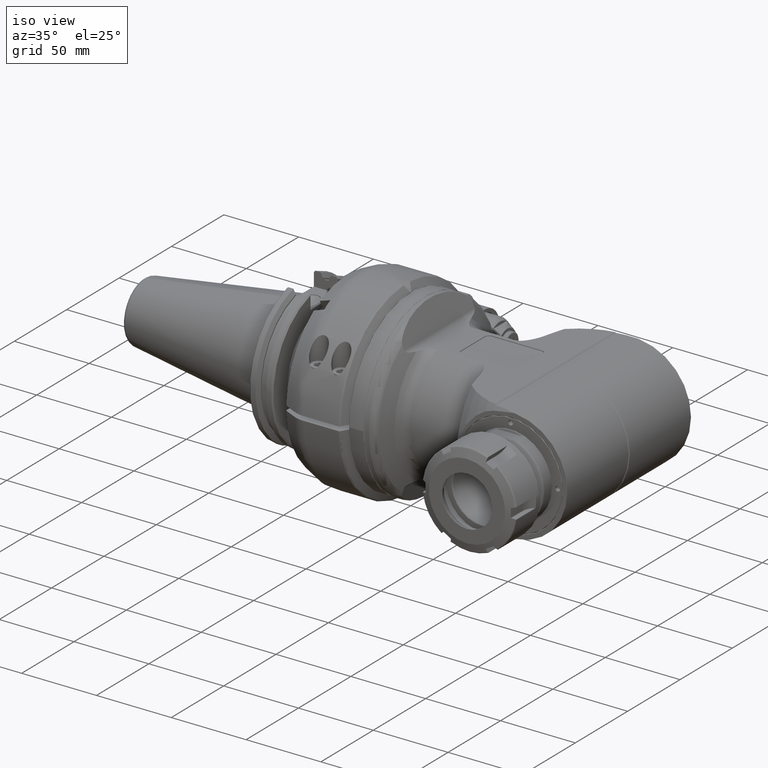
[diagram: clean part render]
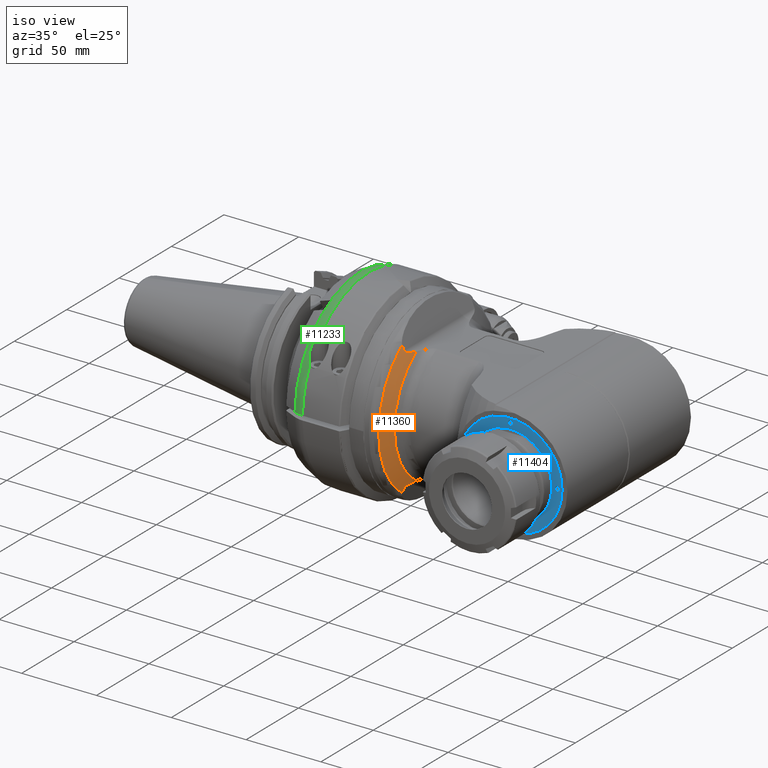
[diagram: same view with three faces highlighted in distinct colors, each labeled with its STEP entity id]
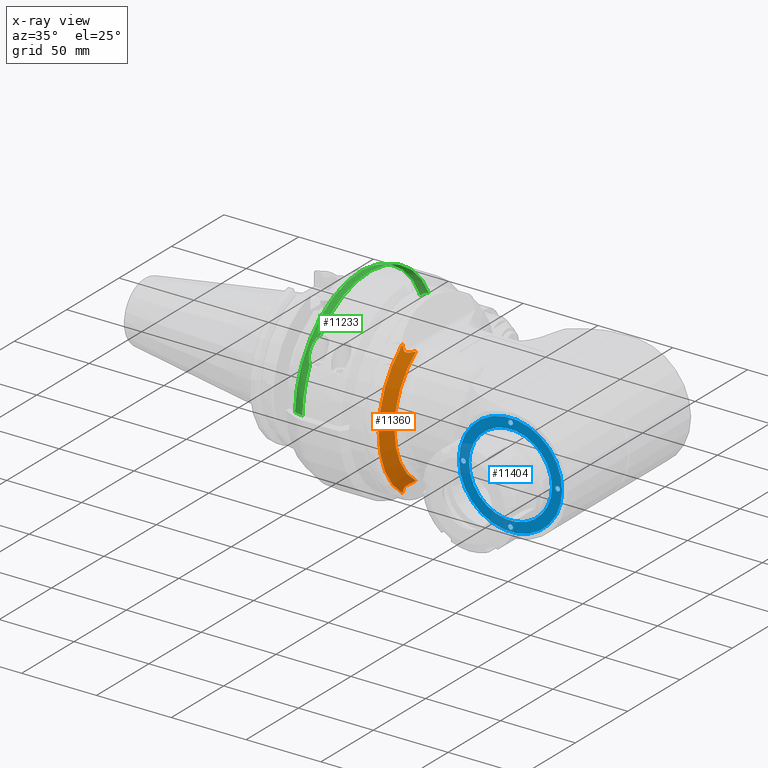
[diagram: x-ray of the same camera — body ghosted, the three highlighted faces saturated]
A machine part, iso view with three faces highlighted in distinct colors.
The next image is the same camera in x-ray (body ghosted, the three faces saturated) — at least one of them is partly hidden behind the body in this view.
Their STEP definitions:

[orange] entity #11360 — the highlighted conical surface has half-angle 65 deg.
#275=B_SPLINE_CURVE_WITH_KNOTS('',3,(#22187,#22188,#22189,#22190,#22191,
#22192,#22193,#22194,#22195,#22196,#22197,#22198,#22199,#22200,#22201,#22202,
#22203,#22204,#22205,#22206,#22207,#22208,#22209,#22210,#22211,#22212,#22213,
#22214,#22215,#22216,#22217,#22218,#22219,#22220,#22221,#22222,#22223,#22224,
#22225,#22226,#22227,#22228,#22229,#22230,#22231,#22232,#22233,#22234,#22235,
#22236,#22237,#22238,#22239,#22240,#22241,#22242,#22243,#22244,#22245,#22246,
#22247,#22248,#22249,#22250,#22251,#22252,#22253,#22254,#22255,#22256,#22257,
#22258,#22259,#22260,#22261,#22262,#22263,#22264,#22265,#22266,#22267,#22268,
#22269,#22270,#22271,#22272,#22273,#22274,#22275,#22276,#22277),
 .UNSPECIFIED.,.F.,.F.,(4,3,3,3,3,3,3,3,3,3,3,3,3,3,3,3,3,3,3,3,3,3,3,3,
3,3,3,3,3,3,4),(0.,0.04166666666667,0.080142904090702,0.08333333333333,
0.122683144462873,0.125,0.162968852365978,0.1666666666667,0.205009826000716,
0.2083333333333,0.24569180482321,0.25,0.284695004652717,0.2916666666667,
0.3333333333333,0.375,0.4166666666667,0.4583333333333,0.5,0.5416666666667,
0.5833333333333,0.625,0.6666666666667,0.7083333333333,0.75,0.7916666666667,
0.8333333333333,0.875,0.9166666666667,0.9583333333333,1.),.UNSPECIFIED.);
#284=B_SPLINE_CURVE_WITH_KNOTS('',3,(#22528,#22529,#22530,#22531,#22532,
#22533,#22534,#22535,#22536,#22537,#22538,#22539,#22540,#22541,#22542,#22543,
#22544,#22545,#22546,#22547,#22548,#22549,#22550,#22551,#22552,#22553,#22554,
#22555,#22556,#22557,#22558,#22559,#22560,#22561,#22562,#22563,#22564,#22565,
#22566,#22567,#22568,#22569,#22570,#22571,#22572,#22573,#22574,#22575,#22576,
#22577,#22578,#22579,#22580,#22581,#22582,#22583,#22584,#22585,#22586,#22587,
#22588,#22589,#22590,#22591,#22592,#22593,#22594,#22595,#22596,#22597,#22598,
#22599,#22600,#22601,#22602,#22603,#22604,#22605,#22606,#22607,#22608,#22609,
#22610,#22611,#22612,#22613,#22614,#22615,#22616,#22617,#22618,#22619,#22620,
#22621),.UNSPECIFIED.,.F.,.F.,(4,3,3,3,3,3,3,3,3,3,3,3,3,3,3,3,3,3,3,3,
3,3,3,3,3,3,3,3,3,3,3,4),(1.19044672554144E-11,0.04166666666667,0.0801449614505642,
0.08333333333333,0.122691160615956,0.125,0.162958626132216,0.1666666666667,
0.205055529704918,0.2083333333333,0.245632715743328,0.25,0.28482009031553,
0.2916666666667,0.331228057176492,0.3333333333333,0.375,0.4166666666667,
0.4583333333333,0.5,0.5416666666667,0.5833333333333,0.625,0.6666666666667,
0.7083333333333,0.75,0.7916666666667,0.8333333333333,0.875,0.9166666666667,
0.9583333333333,1.),.UNSPECIFIED.);
#420=CONICAL_SURFACE('',#12544,51.61607260739,1.13446401379631);
#2706=FACE_OUTER_BOUND('',#3453,.T.);
#3453=EDGE_LOOP('',(#9414,#9415,#9416,#9417,#9418,#9419));
#4187=CIRCLE('',#12523,56.1130913087);
#4189=CIRCLE('',#12526,97.519702599638);
#4199=CIRCLE('',#12542,47.11905390607);
#4201=CIRCLE('',#12545,97.5197026022416);
#5114=VERTEX_POINT('',#22127);
#5115=VERTEX_POINT('',#22144);
#5117=VERTEX_POINT('',#22164);
#5119=VERTEX_POINT('',#22186);
#5130=VERTEX_POINT('',#22522);
#5131=VERTEX_POINT('',#22527);
#6595=EDGE_CURVE('',#5114,#5115,#4187,.T.);
#6600=EDGE_CURVE('',#5115,#5117,#4189,.T.);
#6601=EDGE_CURVE('',#5119,#5117,#275,.T.);
#6616=EDGE_CURVE('',#5130,#5131,#284,.T.);
#6649=EDGE_CURVE('',#5119,#5130,#4199,.T.);
#6652=EDGE_CURVE('',#5131,#5114,#4201,.T.);
#9414=ORIENTED_EDGE('',*,*,#6649,.F.);
#9415=ORIENTED_EDGE('',*,*,#6601,.T.);
#9416=ORIENTED_EDGE('',*,*,#6600,.F.);
#9417=ORIENTED_EDGE('',*,*,#6595,.F.);
#9418=ORIENTED_EDGE('',*,*,#6652,.F.);
#9419=ORIENTED_EDGE('',*,*,#6616,.F.);
#11360=ADVANCED_FACE('',(#2706),#420,.T.);
#12523=AXIS2_PLACEMENT_3D('',#22145,#15277,#15278);
#12526=AXIS2_PLACEMENT_3D('',#22184,#15284,#15285);
#12542=AXIS2_PLACEMENT_3D('',#22778,#15327,#15328);
#12544=AXIS2_PLACEMENT_3D('',#22793,#15331,#15332);
#12545=AXIS2_PLACEMENT_3D('',#22794,#15333,#15334);
#15277=DIRECTION('center_axis',(-1.,0.,0.));
#15278=DIRECTION('ref_axis',(0.,-0.599356047027288,-0.800482560017283));
#15284=DIRECTION('center_axis',(0.939692620785776,7.67999771890325E-11,
0.342020143326034));
#15285=DIRECTION('ref_axis',(0.00157477489048002,-0.999989400000132,-0.00432665822777524));
#15327=DIRECTION('center_axis',(1.,0.,0.));
#15328=DIRECTION('ref_axis',(0.,-0.558893115748477,0.829239703082866));
#15331=DIRECTION('center_axis',(-1.,0.,0.));
#15332=DIRECTION('ref_axis',(0.,-1.,-2.08643217218556E-11));
#15333=DIRECTION('center_axis',(0.939692620784958,-6.62987687350415E-11,
-0.34202014332828));
#15334=DIRECTION('ref_axis',(-0.0106881019219166,-0.999511602007248,-0.0293653184932679));
#22127=CARTESIAN_POINT('',(17.84618763115,-33.63172059327,-44.91755098127));
#22144=CARTESIAN_POINT('',(17.84618763112,-33.63172059326,44.91755098134));
#22145=CARTESIAN_POINT('Origin',(17.84618763115,0.,0.));
#22164=CARTESIAN_POINT('',(19.04205971778,-33.67831531143,41.6319194267));
#22184=CARTESIAN_POINT('Origin',(18.888488138799,63.8403535793733,42.0538538503229));
#22186=CARTESIAN_POINT('',(22.04017614956,-26.33451484929,39.07299027066));
#22187=CARTESIAN_POINT('Ctrl Pts',(22.0401761495643,-26.33451484929,39.0729902706823));
#22188=CARTESIAN_POINT('Ctrl Pts',(21.9573188965052,-26.62863056152,39.0890395574342));
#22189=CARTESIAN_POINT('Ctrl Pts',(21.8750180075767,-26.9136041141,39.1077026952804));
#22190=CARTESIAN_POINT('Ctrl Pts',(21.7934350784642,-27.1896440024501,39.1289336007694));
#22191=CARTESIAN_POINT('Ctrl Pts',(21.7180989788575,-27.4445474332339,39.1485388494171));
#22192=CARTESIAN_POINT('Ctrl Pts',(21.6433759027927,-27.6918329283479,39.1703371980135));
#22193=CARTESIAN_POINT('Ctrl Pts',(21.5695690111105,-27.9310617496978,39.1942154708301));
#22194=CARTESIAN_POINT('Ctrl Pts',(21.5634489827165,-27.9508984769459,39.1961954445738));
#22195=CARTESIAN_POINT('Ctrl Pts',(21.5573352435098,-27.9706798094167,39.1981896912613));
#22196=CARTESIAN_POINT('Ctrl Pts',(21.5512279605648,-27.9904054969749,39.2001981313627));
#22197=CARTESIAN_POINT('Ctrl Pts',(21.4759025381457,-28.2336962960452,39.2249696378425));
#22198=CARTESIAN_POINT('Ctrl Pts',(21.4015606234956,-28.4685223763363,39.2519042885973));
#22199=CARTESIAN_POINT('Ctrl Pts',(21.328485784823,-28.6945866574527,39.280833168519));
#22200=CARTESIAN_POINT('Ctrl Pts',(21.3241832522379,-28.7078969699146,39.2825364558718));
#22201=CARTESIAN_POINT('Ctrl Pts',(21.3198851049657,-28.7211769081029,39.284246643419));
#22202=CARTESIAN_POINT('Ctrl Pts',(21.3155913981017,-28.7344264113799,39.2859636918034));
#22203=CARTESIAN_POINT('Ctrl Pts',(21.2452257152148,-28.9515605510727,39.3141028466037));
#22204=CARTESIAN_POINT('Ctrl Pts',(21.1760545265543,-29.1605207954474,39.3440884205707));
#22205=CARTESIAN_POINT('Ctrl Pts',(21.1083383162294,-29.3610460722238,39.375710935886));
#22206=CARTESIAN_POINT('Ctrl Pts',(21.1017433849811,-29.3805753755847,39.3787906757799));
#22207=CARTESIAN_POINT('Ctrl Pts',(21.0951622306317,-29.4000246736613,39.381885908667));
#22208=CARTESIAN_POINT('Ctrl Pts',(21.0885950782663,-29.4193937252888,39.3849964198149));
#22209=CARTESIAN_POINT('Ctrl Pts',(21.0204993468319,-29.6202341602884,39.4172497497158));
#22210=CARTESIAN_POINT('Ctrl Pts',(20.953911479761,-29.8124465698564,39.451149238896));
#22211=CARTESIAN_POINT('Ctrl Pts',(20.8890621147946,-29.9959017987427,39.4864344627043));
#22212=CARTESIAN_POINT('Ctrl Pts',(20.8834411032837,-30.0118033261337,39.4894929143837));
#22213=CARTESIAN_POINT('Ctrl Pts',(20.8778331309816,-30.0276390602042,39.4925617537493));
#22214=CARTESIAN_POINT('Ctrl Pts',(20.8722383352359,-30.0434089168462,39.4956407981462));
#22215=CARTESIAN_POINT('Ctrl Pts',(20.8093490449643,-30.2206727772216,39.5302513408076));
#22216=CARTESIAN_POINT('Ctrl Pts',(20.7481274558882,-30.3896128391818,39.5661544767546));
#22217=CARTESIAN_POINT('Ctrl Pts',(20.6887802343697,-30.5501494407341,39.6030535861167));
#22218=CARTESIAN_POINT('Ctrl Pts',(20.6819362869782,-30.5686625914313,39.6073088074532));
#22219=CARTESIAN_POINT('Ctrl Pts',(20.6751172234855,-30.5870639861665,39.6115772366963));
#22220=CARTESIAN_POINT('Ctrl Pts',(20.6683233269905,-30.6053535027683,39.6158583905748));
#22221=CARTESIAN_POINT('Ctrl Pts',(20.6136103298227,-30.7526436875342,39.6503356246919));
#22222=CARTESIAN_POINT('Ctrl Pts',(20.5605323673521,-30.8926780210362,39.6856412665796));
#22223=CARTESIAN_POINT('Ctrl Pts',(20.5092923446924,-31.025343358486,39.7214554672117));
#22224=CARTESIAN_POINT('Ctrl Pts',(20.4989961039757,-31.0520013140888,39.7286520220071));
#22225=CARTESIAN_POINT('Ctrl Pts',(20.4887739445352,-31.0783617285175,39.7358690035999));
#22226=CARTESIAN_POINT('Ctrl Pts',(20.4786273158093,-31.104423683772,39.7431036614004));
#22227=CARTESIAN_POINT('Ctrl Pts',(20.417985219841,-31.2601849355501,39.7863421423271));
#22228=CARTESIAN_POINT('Ctrl Pts',(20.3600453029513,-31.4052853872099,39.8302141142532));
#22229=CARTESIAN_POINT('Ctrl Pts',(20.3049355086154,-31.5401605661397,39.8742185481186));
#22230=CARTESIAN_POINT('Ctrl Pts',(20.2498257142794,-31.6750357450698,39.9182229819841));
#22231=CARTESIAN_POINT('Ctrl Pts',(20.1975417263057,-31.7996856512699,39.9623543943869));
#22232=CARTESIAN_POINT('Ctrl Pts',(20.1478881424103,-31.9152749845167,40.0063569962018));
#22233=CARTESIAN_POINT('Ctrl Pts',(20.0982345585148,-32.0308643177634,40.0503595980166));
#22234=CARTESIAN_POINT('Ctrl Pts',(20.0512105944944,-32.1373930780568,40.0942323763086));
#22235=CARTESIAN_POINT('Ctrl Pts',(20.0065623099306,-32.2360270549836,40.1378212925491));
#22236=CARTESIAN_POINT('Ctrl Pts',(19.9619140253668,-32.3346610319101,40.1814102087895));
#22237=CARTESIAN_POINT('Ctrl Pts',(19.9196417748791,-32.4254002254699,40.2247156300839));
#22238=CARTESIAN_POINT('Ctrl Pts',(19.8795184615954,-32.5092426844965,40.2676131822737));
#22239=CARTESIAN_POINT('Ctrl Pts',(19.8393951483116,-32.5930851435232,40.3105107344637));
#22240=CARTESIAN_POINT('Ctrl Pts',(19.8014212251432,-32.6700308680166,40.3530008152785));
#22241=CARTESIAN_POINT('Ctrl Pts',(19.7654020024102,-32.7409207301067,40.3949710842888));
#22242=CARTESIAN_POINT('Ctrl Pts',(19.7293827796773,-32.8118105921967,40.4369413532991));
#22243=CARTESIAN_POINT('Ctrl Pts',(19.695319455813,-32.8766445918834,40.478392873512));
#22244=CARTESIAN_POINT('Ctrl Pts',(19.6630953147445,-32.9360653765485,40.5191493829581));
#22245=CARTESIAN_POINT('Ctrl Pts',(19.630871173676,-32.9954861612134,40.5599058924041));
#22246=CARTESIAN_POINT('Ctrl Pts',(19.600485018097,-33.0494937308566,40.5999664447357));
#22247=CARTESIAN_POINT('Ctrl Pts',(19.5717512099699,-33.0988109586565,40.6392694202419));
#22248=CARTESIAN_POINT('Ctrl Pts',(19.5430174018428,-33.1481281864566,40.6785723957483));
#22249=CARTESIAN_POINT('Ctrl Pts',(19.5159366969415,-33.1927550724133,40.7171183509999));
#22250=CARTESIAN_POINT('Ctrl Pts',(19.4903747955885,-33.2332790285833,40.7548084693479));
#22251=CARTESIAN_POINT('Ctrl Pts',(19.4648128942356,-33.2738029847534,40.792498587696));
#22252=CARTESIAN_POINT('Ctrl Pts',(19.4407680074941,-33.3102240111367,40.8293316619892));
#22253=CARTESIAN_POINT('Ctrl Pts',(19.4180081234818,-33.3432219162417,40.8654005545779));
#22254=CARTESIAN_POINT('Ctrl Pts',(19.3952482394695,-33.3762198213467,40.9014694471665));
#22255=CARTESIAN_POINT('Ctrl Pts',(19.3737743487799,-33.4057946051733,40.9367747518226));
#22256=CARTESIAN_POINT('Ctrl Pts',(19.3534231353492,-33.4324433933549,40.9713589464244));
#22257=CARTESIAN_POINT('Ctrl Pts',(19.3330719219184,-33.4590921815366,41.0059431410263));
#22258=CARTESIAN_POINT('Ctrl Pts',(19.3138432241081,-33.4828149740733,41.0398061688357));
#22259=CARTESIAN_POINT('Ctrl Pts',(19.2955749448926,-33.5040576269667,41.0730372110255));
#22260=CARTESIAN_POINT('Ctrl Pts',(19.2773066656771,-33.52530027986,41.1062682532153));
#22261=CARTESIAN_POINT('Ctrl Pts',(19.259997724596,-33.54406279311,41.1388666778292));
#22262=CARTESIAN_POINT('Ctrl Pts',(19.2434369685219,-33.5607512603417,41.1710786265977));
#22263=CARTESIAN_POINT('Ctrl Pts',(19.2268762124477,-33.5774397275733,41.203290575366));
#22264=CARTESIAN_POINT('Ctrl Pts',(19.2110666265427,-33.5920541487867,41.235117587257));
#22265=CARTESIAN_POINT('Ctrl Pts',(19.1959763782002,-33.6047708095883,41.2664980770641));
#22266=CARTESIAN_POINT('Ctrl Pts',(19.1808861298576,-33.61748747039,41.2978785668713));
#22267=CARTESIAN_POINT('Ctrl Pts',(19.1665135242162,-33.62830637078,41.3288117534704));
#22268=CARTESIAN_POINT('Ctrl Pts',(19.1527395306013,-33.6374605494983,41.359440808403));
#22269=CARTESIAN_POINT('Ctrl Pts',(19.1389655369864,-33.6466147282167,41.3900698633356));
#22270=CARTESIAN_POINT('Ctrl Pts',(19.12578971657,-33.6541041852633,41.4203945641152));
#22271=CARTESIAN_POINT('Ctrl Pts',(19.1130845994029,-33.660086065035,41.4506348466256));
#22272=CARTESIAN_POINT('Ctrl Pts',(19.1003794822358,-33.6660679448067,41.4808751291359));
#22273=CARTESIAN_POINT('Ctrl Pts',(19.0881459348141,-33.6705422473033,41.5110313480991));
#22274=CARTESIAN_POINT('Ctrl Pts',(19.0763167304081,-33.6735671293392,41.5412336006147));
#22275=CARTESIAN_POINT('Ctrl Pts',(19.0644875260021,-33.676592011375,41.5714358531304));
#22276=CARTESIAN_POINT('Ctrl Pts',(19.0530642370766,-33.67816747295,41.6016847584088));
#22277=CARTESIAN_POINT('Ctrl Pts',(19.04205971779,-33.67831531144,41.63191942666));
#22522=CARTESIAN_POINT('',(22.0401761500767,-26.3345148470315,-39.0729902708492));
#22527=CARTESIAN_POINT('',(19.04205971778,-33.67831531143,-41.6319194267));
#22528=CARTESIAN_POINT('Ctrl Pts',(22.0401761502,-26.3345148470821,-39.0729902705591));
#22529=CARTESIAN_POINT('Ctrl Pts',(21.9573233230387,-26.6286148489228,-39.0890387000095));
#22530=CARTESIAN_POINT('Ctrl Pts',(21.8750270391584,-26.9135728194939,-39.1077006563254));
#22531=CARTESIAN_POINT('Ctrl Pts',(21.7934489165901,-27.1895971796159,-39.128929999602));
#22532=CARTESIAN_POINT('Ctrl Pts',(21.7181132274141,-27.4444999004001,-39.1485348538955));
#22533=CARTESIAN_POINT('Ctrl Pts',(21.6433907986279,-27.6917839166775,-39.1703327166736));
#22534=CARTESIAN_POINT('Ctrl Pts',(21.5695847782806,-27.9310106433628,-39.1942103698142));
#22535=CARTESIAN_POINT('Ctrl Pts',(21.5634690956243,-27.9508333453109,-39.1961889096203));
#22536=CARTESIAN_POINT('Ctrl Pts',(21.5573596949106,-27.9706007255892,-39.1981817015255));
#22537=CARTESIAN_POINT('Ctrl Pts',(21.5512567428558,-27.9903125346732,-39.2001886661439));
#22538=CARTESIAN_POINT('Ctrl Pts',(21.4759208216653,-28.2336385975933,-39.22496299289));
#22539=CARTESIAN_POINT('Ctrl Pts',(21.4015689195443,-28.4684967936689,-39.2519009772728));
#22540=CARTESIAN_POINT('Ctrl Pts',(21.3284845933106,-28.6945903476576,-39.2808336402154));
#22541=CARTESIAN_POINT('Ctrl Pts',(21.3241972638919,-28.7078536230457,-39.2825309105248));
#22542=CARTESIAN_POINT('Ctrl Pts',(21.319914289437,-28.721086736485,-39.2842350321192));
#22543=CARTESIAN_POINT('Ctrl Pts',(21.3156357244357,-28.7342896280632,-39.2859459660607));
#22544=CARTESIAN_POINT('Ctrl Pts',(21.2452936944133,-28.9513526376193,-39.3140746883408));
#22545=CARTESIAN_POINT('Ctrl Pts',(21.1761454390107,-29.1602469136094,-39.3440485419767));
#22546=CARTESIAN_POINT('Ctrl Pts',(21.1084514602663,-29.3607110052988,-39.3756581013674));
#22547=CARTESIAN_POINT('Ctrl Pts',(21.1018386809668,-29.3802936154571,-39.3787459245961));
#22548=CARTESIAN_POINT('Ctrl Pts',(21.0952397556485,-29.3997957795062,-39.3818493232289));
#22549=CARTESIAN_POINT('Ctrl Pts',(21.0886549114691,-29.4192172537255,-39.384968080612));
#22550=CARTESIAN_POINT('Ctrl Pts',(21.0204828731705,-29.6202852590165,-39.4172561715637));
#22551=CARTESIAN_POINT('Ctrl Pts',(20.9538224675555,-29.8127047730168,-39.4511938925846));
#22552=CARTESIAN_POINT('Ctrl Pts',(20.8889041273493,-29.9963487605518,-39.486520429944));
#22553=CARTESIAN_POINT('Ctrl Pts',(20.8833611246596,-30.0120290615827,-39.489536759243));
#22554=CARTESIAN_POINT('Ctrl Pts',(20.8778308007855,-30.0276453849252,-39.4925631909442));
#22555=CARTESIAN_POINT('Ctrl Pts',(20.872313286887,-30.0431976515012,-39.4955995502385));
#22556=CARTESIAN_POINT('Ctrl Pts',(20.8095273838295,-30.2201728471282,-39.5301514451332));
#22557=CARTESIAN_POINT('Ctrl Pts',(20.7484030480792,-30.3888533093642,-39.5659920353099));
#22558=CARTESIAN_POINT('Ctrl Pts',(20.6891474246313,-30.5491560650838,-39.6028253132455));
#22559=CARTESIAN_POINT('Ctrl Pts',(20.6822093432294,-30.5679254831309,-39.6071380225842));
#22560=CARTESIAN_POINT('Ctrl Pts',(20.6752968366528,-30.5865800475337,-39.6114643025277));
#22561=CARTESIAN_POINT('Ctrl Pts',(20.6684102019896,-30.6051196251033,-39.6158036481076));
#22562=CARTESIAN_POINT('Ctrl Pts',(20.613503484943,-30.7529345433564,-39.6504009850619));
#22563=CARTESIAN_POINT('Ctrl Pts',(20.5602442281572,-30.8934400069067,-39.685832011333));
#22564=CARTESIAN_POINT('Ctrl Pts',(20.5088340942917,-31.0265298911218,-39.7217758088867));
#22565=CARTESIAN_POINT('Ctrl Pts',(20.498725464373,-31.052698980449,-39.7288433366292));
#22566=CARTESIAN_POINT('Ctrl Pts',(20.4886882005821,-31.078581366794,-39.7359305866997));
#22567=CARTESIAN_POINT('Ctrl Pts',(20.4787236516358,-31.104176243392,-39.7430349750464));
#22568=CARTESIAN_POINT('Ctrl Pts',(20.4211457627903,-31.2520704398796,-39.784086073771));
#22569=CARTESIAN_POINT('Ctrl Pts',(20.3659991570285,-31.3903651331896,-39.8257112033268));
#22570=CARTESIAN_POINT('Ctrl Pts',(20.3133976726182,-31.519424350122,-39.8674803405013));
#22571=CARTESIAN_POINT('Ctrl Pts',(20.3105984623398,-31.5262922910291,-39.8697031028322));
#22572=CARTESIAN_POINT('Ctrl Pts',(20.3078064480502,-31.5331340781632,-39.8719262689739));
#22573=CARTESIAN_POINT('Ctrl Pts',(20.3050216430592,-31.539949766383,-39.8741497728604));
#22574=CARTESIAN_POINT('Ctrl Pts',(20.2499060512556,-31.6748427628398,-39.9181563488955));
#22575=CARTESIAN_POINT('Ctrl Pts',(20.1976149960891,-31.7995126780299,-39.9622913846343));
#22576=CARTESIAN_POINT('Ctrl Pts',(20.1479529741086,-31.9151240596633,-40.0062995441318));
#22577=CARTESIAN_POINT('Ctrl Pts',(20.0982909521281,-32.0307354412967,-40.0503077036292));
#22578=CARTESIAN_POINT('Ctrl Pts',(20.0512572324551,-32.1372882893735,-40.0941880344826));
#22579=CARTESIAN_POINT('Ctrl Pts',(20.0066013306941,-32.2359408517636,-40.1377831981493));
#22580=CARTESIAN_POINT('Ctrl Pts',(19.9619454289334,-32.3345934141534,-40.1813783618159));
#22581=CARTESIAN_POINT('Ctrl Pts',(19.9196676028603,-32.4253456908566,-40.2246886255427));
#22582=CARTESIAN_POINT('Ctrl Pts',(19.8795378143196,-32.5092022444648,-40.2675924915945));
#22583=CARTESIAN_POINT('Ctrl Pts',(19.8394080257788,-32.5930587980732,-40.3104963576465));
#22584=CARTESIAN_POINT('Ctrl Pts',(19.8014268154572,-32.6700196285866,-40.3529943059121));
#22585=CARTESIAN_POINT('Ctrl Pts',(19.7654021426238,-32.7409204541483,-40.3949709209092));
#22586=CARTESIAN_POINT('Ctrl Pts',(19.7293774697905,-32.8118212797101,-40.4369475359064));
#22587=CARTESIAN_POINT('Ctrl Pts',(19.6953104386014,-32.8766621003201,-40.4784037988658));
#22588=CARTESIAN_POINT('Ctrl Pts',(19.6630811154464,-32.9360915586968,-40.5191673420786));
#22589=CARTESIAN_POINT('Ctrl Pts',(19.6308517922914,-32.9955210170734,-40.5599308852914));
#22590=CARTESIAN_POINT('Ctrl Pts',(19.6004591160642,-33.0495391132166,-40.6000008709835));
#22591=CARTESIAN_POINT('Ctrl Pts',(19.5717224864558,-33.0988602597565,-40.6393087096387));
#22592=CARTESIAN_POINT('Ctrl Pts',(19.5429858568473,-33.1481814062966,-40.6786165482941));
#22593=CARTESIAN_POINT('Ctrl Pts',(19.5159058706482,-33.1928056032333,-40.7171626805488));
#22594=CARTESIAN_POINT('Ctrl Pts',(19.490343709336,-33.233328306165,-40.7548543056096));
#22595=CARTESIAN_POINT('Ctrl Pts',(19.4647815480238,-33.2738510090967,-40.7925459306704));
#22596=CARTESIAN_POINT('Ctrl Pts',(19.4407355533518,-33.3102722180234,-40.8293819293297));
#22597=CARTESIAN_POINT('Ctrl Pts',(19.4179769960822,-33.3432670470351,-40.8654498847488));
#22598=CARTESIAN_POINT('Ctrl Pts',(19.3952184388127,-33.3762618760467,-40.9015178401679));
#22599=CARTESIAN_POINT('Ctrl Pts',(19.3737481760559,-33.4058303251433,-40.9368182623279));
#22600=CARTESIAN_POINT('Ctrl Pts',(19.3533983370469,-33.4324758645833,-40.9714010884474));
#22601=CARTESIAN_POINT('Ctrl Pts',(19.3330484980378,-33.4591214040233,-41.0059839145669));
#22602=CARTESIAN_POINT('Ctrl Pts',(19.313819066058,-33.4828440338066,-41.0398491721156));
#22603=CARTESIAN_POINT('Ctrl Pts',(19.2955518800263,-33.5040844437133,-41.0730791679281));
#22604=CARTESIAN_POINT('Ctrl Pts',(19.2772846939945,-33.52532485362,-41.1063091637407));
#22605=CARTESIAN_POINT('Ctrl Pts',(19.2599785744252,-33.54408304365,-41.1389032132956));
#22606=CARTESIAN_POINT('Ctrl Pts',(19.2434204942392,-33.5607678654567,-41.1711106707039));
#22607=CARTESIAN_POINT('Ctrl Pts',(19.2268624140532,-33.5774526872633,-41.2033181281121));
#22608=CARTESIAN_POINT('Ctrl Pts',(19.2110553821226,-33.5920641408467,-41.2351405429543));
#22609=CARTESIAN_POINT('Ctrl Pts',(19.1959671549299,-33.6047785802533,-41.2665172571799));
#22610=CARTESIAN_POINT('Ctrl Pts',(19.1808789277372,-33.61749301966,-41.2978939714056));
#22611=CARTESIAN_POINT('Ctrl Pts',(19.1665078208096,-33.62831044489,-41.3288242094545));
#22612=CARTESIAN_POINT('Ctrl Pts',(19.1527349893359,-33.6374635676217,-41.3594509067945));
#22613=CARTESIAN_POINT('Ctrl Pts',(19.1389621578623,-33.6466166903533,-41.3900776041344));
#22614=CARTESIAN_POINT('Ctrl Pts',(19.125787163166,-33.6541055105867,-41.4204005383252));
#22615=CARTESIAN_POINT('Ctrl Pts',(19.1130827089066,-33.6600869551867,-41.4506393463274));
#22616=CARTESIAN_POINT('Ctrl Pts',(19.1003782546472,-33.6660683997867,-41.4808781543295));
#22617=CARTESIAN_POINT('Ctrl Pts',(19.0881452036225,-33.6705424687533,-41.5110331893184));
#22618=CARTESIAN_POINT('Ctrl Pts',(19.0763163096174,-33.6735672369892,-41.5412346749755));
#22619=CARTESIAN_POINT('Ctrl Pts',(19.0644874156122,-33.676592005225,-41.5714361606327));
#22620=CARTESIAN_POINT('Ctrl Pts',(19.0530642522931,-33.67816747273,-41.6016847166011));
#22621=CARTESIAN_POINT('Ctrl Pts',(19.0420597177759,-33.67831531143,-41.6319194266985));
#22778=CARTESIAN_POINT('Origin',(22.04017614972,0.,0.));
#22793=CARTESIAN_POINT('Origin',(19.94318189043,0.,0.));
#22794=CARTESIAN_POINT('Origin',(18.8884881519078,63.8403535819769,-42.0538538551064));

[blue] entity #11404 — the highlighted planar face has unit normal (0, 1, 0).
#2259=FACE_BOUND('',#3501,.T.);
#2260=FACE_BOUND('',#3502,.T.);
#2261=FACE_BOUND('',#3503,.T.);
#2262=FACE_BOUND('',#3504,.T.);
#2263=FACE_BOUND('',#3505,.T.);
#2750=FACE_OUTER_BOUND('',#3500,.T.);
#3500=EDGE_LOOP('',(#9659));
#3501=EDGE_LOOP('',(#9660));
#3502=EDGE_LOOP('',(#9661));
#3503=EDGE_LOOP('',(#9662));
#3504=EDGE_LOOP('',(#9663));
#3505=EDGE_LOOP('',(#9664));
#4246=CIRCLE('',#12635,34.5);
#4247=CIRCLE('',#12637,1.6);
#4248=CIRCLE('',#12638,1.6);
#4249=CIRCLE('',#12639,1.6);
#4250=CIRCLE('',#12640,1.6);
#4251=CIRCLE('',#12641,27.65);
#5241=VERTEX_POINT('',#23444);
#5242=VERTEX_POINT('',#23448);
#5243=VERTEX_POINT('',#23450);
#5244=VERTEX_POINT('',#23452);
#5245=VERTEX_POINT('',#23454);
#5246=VERTEX_POINT('',#23456);
#6776=EDGE_CURVE('',#5241,#5241,#4246,.T.);
#6777=EDGE_CURVE('',#5242,#5242,#4247,.T.);
#6778=EDGE_CURVE('',#5243,#5243,#4248,.T.);
#6779=EDGE_CURVE('',#5244,#5244,#4249,.T.);
#6780=EDGE_CURVE('',#5245,#5245,#4250,.T.);
#6781=EDGE_CURVE('',#5246,#5246,#4251,.T.);
#9659=ORIENTED_EDGE('',*,*,#6776,.T.);
#9660=ORIENTED_EDGE('',*,*,#6777,.T.);
#9661=ORIENTED_EDGE('',*,*,#6778,.T.);
#9662=ORIENTED_EDGE('',*,*,#6779,.T.);
#9663=ORIENTED_EDGE('',*,*,#6780,.T.);
#9664=ORIENTED_EDGE('',*,*,#6781,.T.);
#10835=PLANE('',#12636);
#11404=ADVANCED_FACE('',(#2750,#2259,#2260,#2261,#2262,#2263),#10835,.F.);
#12635=AXIS2_PLACEMENT_3D('',#23446,#15544,#15545);
#12636=AXIS2_PLACEMENT_3D('',#23447,#15546,#15547);
#12637=AXIS2_PLACEMENT_3D('',#23449,#15548,#15549);
#12638=AXIS2_PLACEMENT_3D('',#23451,#15550,#15551);
#12639=AXIS2_PLACEMENT_3D('',#23453,#15552,#15553);
#12640=AXIS2_PLACEMENT_3D('',#23455,#15554,#15555);
#12641=AXIS2_PLACEMENT_3D('',#23457,#15556,#15557);
#15544=DIRECTION('center_axis',(0.,-1.,0.));
#15545=DIRECTION('ref_axis',(1.,0.,0.));
#15546=DIRECTION('center_axis',(0.,1.,0.));
#15547=DIRECTION('ref_axis',(1.,0.,0.));
#15548=DIRECTION('center_axis',(0.,1.,0.));
#15549=DIRECTION('ref_axis',(0.,0.,1.));
#15550=DIRECTION('center_axis',(0.,1.,0.));
#15551=DIRECTION('ref_axis',(4.440892098501E-14,0.,1.));
#15552=DIRECTION('center_axis',(0.,1.,0.));
#15553=DIRECTION('ref_axis',(0.,0.,1.));
#15554=DIRECTION('center_axis',(0.,1.,0.));
#15555=DIRECTION('ref_axis',(0.,0.,1.));
#15556=DIRECTION('center_axis',(0.,1.,0.));
#15557=DIRECTION('ref_axis',(-1.,0.,0.));
#23444=CARTESIAN_POINT('',(73.5,-59.,0.));
#23446=CARTESIAN_POINT('Origin',(108.,-59.,0.));
#23447=CARTESIAN_POINT('Origin',(125.5,-59.,0.));
#23448=CARTESIAN_POINT('',(108.,-59.,-33.1));
#23449=CARTESIAN_POINT('Origin',(108.,-59.,-31.5));
#23450=CARTESIAN_POINT('',(76.5,-59.,-1.6));
#23451=CARTESIAN_POINT('Origin',(76.5,-59.,0.));
#23452=CARTESIAN_POINT('',(139.5,-59.,-1.6));
#23453=CARTESIAN_POINT('Origin',(139.5,-59.,0.));
#23454=CARTESIAN_POINT('',(108.,-59.,29.9));
#23455=CARTESIAN_POINT('Origin',(108.,-59.,31.5));
#23456=CARTESIAN_POINT('',(80.35,-59.,3.38614839964243E-15));
#23457=CARTESIAN_POINT('Origin',(108.,-59.,0.));

[green] entity #11233 — the highlighted toroidal blend (fillet) surface has major radius 50 mm and minor (blend) radius 14 mm.
#188=B_SPLINE_CURVE_WITH_KNOTS('',3,(#17950,#17951,#17952,#17953,#17954,
#17955,#17956,#17957),.UNSPECIFIED.,.F.,.F.,(4,2,2,4),(7.71711455611756,
7.77709215270507,8.03623389546179,8.29537563821852),.UNSPECIFIED.);
#236=B_SPLINE_CURVE_WITH_KNOTS('',3,(#20502,#20503,#20504,#20505,#20506,
#20507,#20508,#20509,#20510,#20511,#20512,#20513,#20514,#20515,#20516,#20517,
#20518,#20519,#20520,#20521,#20522,#20523,#20524,#20525,#20526,#20527,#20528,
#20529,#20530,#20531,#20532,#20533,#20534,#20535,#20536,#20537,#20538,#20539,
#20540,#20541,#20542,#20543,#20544,#20545,#20546,#20547,#20548,#20549,#20550),
 .UNSPECIFIED.,.F.,.F.,(4,3,3,3,3,3,3,3,3,3,3,3,3,3,3,3,4),(0.,0.0625,0.125,
0.1875,0.25,0.3125,0.375,0.4375,0.5,0.5625,0.625,0.6875,0.75,0.8125,0.875,
0.9375,1.),.UNSPECIFIED.);
#253=B_SPLINE_CURVE_WITH_KNOTS('',3,(#21101,#21102,#21103,#21104,#21105,
#21106,#21107,#21108,#21109,#21110,#21111,#21112,#21113,#21114,#21115,#21116,
#21117,#21118,#21119,#21120,#21121,#21122,#21123,#21124,#21125,#21126,#21127,
#21128,#21129,#21130,#21131,#21132,#21133,#21134,#21135,#21136,#21137,#21138,
#21139,#21140,#21141,#21142,#21143,#21144,#21145,#21146,#21147,#21148,#21149,
#21150,#21151,#21152,#21153,#21154,#21155,#21156,#21157,#21158,#21159,#21160,
#21161,#21162,#21163,#21164,#21165,#21166,#21167,#21168,#21169,#21170,#21171,
#21172,#21173,#21174,#21175,#21176,#21177,#21178,#21179,#21180,#21181,#21182,
#21183,#21184,#21185,#21186,#21187,#21188,#21189,#21190,#21191,#21192,#21193,
#21194,#21195,#21196,#21197,#21198,#21199,#21200,#21201,#21202,#21203,#21204,
#21205,#21206,#21207,#21208,#21209,#21210,#21211,#21212,#21213,#21214,#21215,
#21216,#21217,#21218,#21219,#21220,#21221,#21222,#21223,#21224,#21225,#21226,
#21227,#21228,#21229,#21230,#21231,#21232,#21233,#21234,#21235,#21236,#21237,
#21238,#21239,#21240,#21241,#21242,#21243,#21244,#21245),.UNSPECIFIED.,
 .F.,.F.,(4,3,3,3,3,3,3,3,3,3,3,3,3,3,3,3,3,3,3,3,3,3,3,3,3,3,3,3,3,3,3,
3,3,3,3,3,3,3,3,3,3,3,3,3,3,3,3,3,4),(0.,0.03125,0.0625,0.09375,0.125,0.15625,
0.1875,0.21875,0.246681227447116,0.25,0.278468107470067,0.28125,0.306459712339101,
0.3125,0.341421804335515,0.34375,0.369114668239165,0.375,0.403843526470225,
0.40625,0.430985255950188,0.4375,0.465178495267201,0.46875,0.492202185634375,
0.5,0.527069976125917,0.53125,0.554683748535474,0.5625,0.589682247739744,
0.59375,0.61810879337968,0.625,0.652815977770649,0.65625,0.681892895837839,
0.6875,0.717143223731596,0.71875,0.75,0.78125,0.8125,0.84375,0.875,0.90625,
0.9375,0.96875,1.),.UNSPECIFIED.);
#2162=TOROIDAL_SURFACE('',#12289,50.,14.);
#2579=FACE_OUTER_BOUND('',#3306,.T.);
#3306=EDGE_LOOP('',(#8809,#8810,#8811,#8812,#8813,#8814));
#3923=CIRCLE('',#11963,62.68830901851);
#4038=CIRCLE('',#12183,64.);
#4039=CIRCLE('',#12184,64.);
#4669=VERTEX_POINT('',#17947);
#4670=VERTEX_POINT('',#17949);
#4692=VERTEX_POINT('',#18043);
#4887=VERTEX_POINT('',#20131);
#4888=VERTEX_POINT('',#20133);
#4890=VERTEX_POINT('',#20142);
#5894=EDGE_CURVE('',#4670,#4669,#188,.T.);
#5920=EDGE_CURVE('',#4692,#4670,#3923,.T.);
#6211=EDGE_CURVE('',#4888,#4887,#4038,.T.);
#6214=EDGE_CURVE('',#4669,#4890,#4039,.T.);
#6247=EDGE_CURVE('',#4887,#4692,#236,.T.);
#6362=EDGE_CURVE('',#4890,#4888,#253,.T.);
#8809=ORIENTED_EDGE('',*,*,#5920,.T.);
#8810=ORIENTED_EDGE('',*,*,#5894,.T.);
#8811=ORIENTED_EDGE('',*,*,#6214,.T.);
#8812=ORIENTED_EDGE('',*,*,#6362,.T.);
#8813=ORIENTED_EDGE('',*,*,#6211,.T.);
#8814=ORIENTED_EDGE('',*,*,#6247,.T.);
#11233=ADVANCED_FACE('',(#2579),#2162,.T.);
#11963=AXIS2_PLACEMENT_3D('',#18044,#13846,#13847);
#12183=AXIS2_PLACEMENT_3D('',#20134,#14418,#14419);
#12184=AXIS2_PLACEMENT_3D('',#20169,#14420,#14421);
#12289=AXIS2_PLACEMENT_3D('',#21100,#14712,#14713);
#13846=DIRECTION('center_axis',(1.,0.,0.));
#13847=DIRECTION('ref_axis',(0.,0.90926044891669,0.416227625267496));
#14418=DIRECTION('center_axis',(-1.,0.,0.));
#14419=DIRECTION('ref_axis',(0.,-0.73678359372379,0.676128638662391));
#14420=DIRECTION('center_axis',(-1.,0.,0.));
#14421=DIRECTION('ref_axis',(0.,-0.999725304124303,0.0234374975961501));
#14712=DIRECTION('center_axis',(1.,0.,0.));
#14713=DIRECTION('ref_axis',(0.,-1.,0.));
#17947=CARTESIAN_POINT('',(-27.60148642943,-63.9824194641161,1.49999983933669));
#17949=CARTESIAN_POINT('',(-33.5181468910144,-62.670358284432,1.49999987294062));
#17950=CARTESIAN_POINT('Ctrl Pts',(-33.5181468913146,-62.6703582850754,
1.499999846154));
#17951=CARTESIAN_POINT('Ctrl Pts',(-33.3301620800891,-62.7580422337813,
1.499999846154));
#17952=CARTESIAN_POINT('Ctrl Pts',(-33.1431551243573,-62.8401665469499,
1.499999846154));
#17953=CARTESIAN_POINT('Ctrl Pts',(-32.1604176457997,-63.2472917950132,
1.499999846154));
#17954=CARTESIAN_POINT('Ctrl Pts',(-31.2562402607336,-63.5296152390965,
1.499999846154));
#17955=CARTESIAN_POINT('Ctrl Pts',(-29.4086775980864,-63.8971792793686,
1.499999846154));
#17956=CARTESIAN_POINT('Ctrl Pts',(-28.4652922386191,-63.9824194639554,
1.499999846154));
#17957=CARTESIAN_POINT('Ctrl Pts',(-27.60148642943,-63.9824194639554,1.499999846154));
#18043=CARTESIAN_POINT('',(-33.5181420938,57.,26.09260599481));
#18044=CARTESIAN_POINT('Origin',(-33.5181420938,0.,0.));
#20131=CARTESIAN_POINT('',(-27.60148642943,57.,29.10326442171));
#20133=CARTESIAN_POINT('',(-27.60148642943,-47.15414999832,43.27223287439));
#20134=CARTESIAN_POINT('Origin',(-27.60148642943,0.,0.));
#20142=CARTESIAN_POINT('',(-27.60148642943,-56.84585085139,29.40321820789));
#20169=CARTESIAN_POINT('Origin',(-27.60148642943,0.,0.));
#20502=CARTESIAN_POINT('Ctrl Pts',(-27.60148642943,57.0000000000002,29.1032644217101));
#20503=CARTESIAN_POINT('Ctrl Pts',(-27.72012615848,57.0000000000002,29.1032644217101));
#20504=CARTESIAN_POINT('Ctrl Pts',(-27.838897109263,57.0000000879192,29.0999488238097));
#20505=CARTESIAN_POINT('Ctrl Pts',(-27.9577958352384,57.0000000000006,29.0932905404645));
#20506=CARTESIAN_POINT('Ctrl Pts',(-28.0766945612137,56.999999912082,29.0866322571193));
#20507=CARTESIAN_POINT('Ctrl Pts',(-28.1957210589924,56.9999997653187,29.076631348167));
#20508=CARTESIAN_POINT('Ctrl Pts',(-28.3148856890468,57.0000000000015,29.0632455606408));
#20509=CARTESIAN_POINT('Ctrl Pts',(-28.4340503191011,57.0000002346843,29.0498597731145));
#20510=CARTESIAN_POINT('Ctrl Pts',(-28.5533530564947,57.0000003055874,29.0330888287901));
#20511=CARTESIAN_POINT('Ctrl Pts',(-28.6727310190117,57.0000000000007,29.0128932038254));
#20512=CARTESIAN_POINT('Ctrl Pts',(-28.7921089815288,56.999999694414,28.9926975788606));
#20513=CARTESIAN_POINT('Ctrl Pts',(-28.9115623187846,57.0000005019963,28.969078030657));
#20514=CARTESIAN_POINT('Ctrl Pts',(-29.0312192257633,56.9999999999995,28.9419461042498));
#20515=CARTESIAN_POINT('Ctrl Pts',(-29.150876132742,56.9999994980028,28.9148141778425));
#20516=CARTESIAN_POINT('Ctrl Pts',(-29.2707367241231,56.9999990112663,28.8841705479018));
#20517=CARTESIAN_POINT('Ctrl Pts',(-29.3910874663851,57.0000000000008,28.8498198165888));
#20518=CARTESIAN_POINT('Ctrl Pts',(-29.5114382086472,57.0000009887354,28.8154690852757));
#20519=CARTESIAN_POINT('Ctrl Pts',(-29.6322786739236,57.0000004915976,28.77740975357));
#20520=CARTESIAN_POINT('Ctrl Pts',(-29.7535060920733,56.9999999999997,28.7355176861632));
#20521=CARTESIAN_POINT('Ctrl Pts',(-29.8747335102229,56.9999995084018,28.6936256187563));
#20522=CARTESIAN_POINT('Ctrl Pts',(-29.9963479592034,56.9999994043356,28.6479010076749));
#20523=CARTESIAN_POINT('Ctrl Pts',(-30.1182911629468,57.0000000000009,28.5982058824638));
#20524=CARTESIAN_POINT('Ctrl Pts',(-30.2402343666903,57.0000005956662,28.5485107572527));
#20525=CARTESIAN_POINT('Ctrl Pts',(-30.3625062914234,57.0000015634133,28.4948449502879));
#20526=CARTESIAN_POINT('Ctrl Pts',(-30.4850056499268,57.0000000000006,28.4370924183687));
#20527=CARTESIAN_POINT('Ctrl Pts',(-30.6075050084302,56.999998436588,28.3793398864495));
#20528=CARTESIAN_POINT('Ctrl Pts',(-30.7302327723074,56.9999985834569,28.3175027485523));
#20529=CARTESIAN_POINT('Ctrl Pts',(-30.8535764449899,56.9999999999998,28.2511662739499));
#20530=CARTESIAN_POINT('Ctrl Pts',(-30.9769201176725,57.0000014165427,28.1848297993474));
#20531=CARTESIAN_POINT('Ctrl Pts',(-31.1008787303474,57.0000005818184,28.1139922458675));
#20532=CARTESIAN_POINT('Ctrl Pts',(-31.2253947973847,56.9999999999992,28.0383952443396));
#20533=CARTESIAN_POINT('Ctrl Pts',(-31.3499108644221,56.9999994181799,27.9627982428117));
#20534=CARTESIAN_POINT('Ctrl Pts',(-31.474984469134,56.9999992939179,27.8824418916068));
#20535=CARTESIAN_POINT('Ctrl Pts',(-31.6005688520015,56.9999999999994,27.7970408449213));
#20536=CARTESIAN_POINT('Ctrl Pts',(-31.7261532348689,57.0000007060808,27.7116397982359));
#20537=CARTESIAN_POINT('Ctrl Pts',(-31.8522481852368,57.0000015106576,27.6211936944377));
#20538=CARTESIAN_POINT('Ctrl Pts',(-31.978716272822,57.000000000001,27.5254672104772));
#20539=CARTESIAN_POINT('Ctrl Pts',(-32.1051843604073,56.9999984893444,27.4297407265166));
#20540=CARTESIAN_POINT('Ctrl Pts',(-32.2320269729447,56.9999985344806,27.3287357361659));
#20541=CARTESIAN_POINT('Ctrl Pts',(-32.3594894408189,57.0000000000015,27.2218514973391));
#20542=CARTESIAN_POINT('Ctrl Pts',(-32.4869519086932,57.0000014655225,27.1149672585122));
#20543=CARTESIAN_POINT('Ctrl Pts',(-32.6150326521099,57.0000004937095,27.0022019339677));
#20544=CARTESIAN_POINT('Ctrl Pts',(-32.743541693015,56.9999999999999,26.88323865353));
#20545=CARTESIAN_POINT('Ctrl Pts',(-32.87205073392,56.9999995062902,26.7642753730922));
#20546=CARTESIAN_POINT('Ctrl Pts',(-33.0009881581905,56.9999996003312,26.6391141824036));
#20547=CARTESIAN_POINT('Ctrl Pts',(-33.1301683281193,57.0000000000003,26.5074312205634));
#20548=CARTESIAN_POINT('Ctrl Pts',(-33.259348498048,57.0000003996693,26.3757482587233));
#20549=CARTESIAN_POINT('Ctrl Pts',(-33.3887708713393,56.9999999999987,26.2375430151294));
#20550=CARTESIAN_POINT('Ctrl Pts',(-33.5181420938006,57.0000000000011,26.0926059948105));
#21100=CARTESIAN_POINT('Origin',(-27.60148642943,0.,0.));
#21101=CARTESIAN_POINT('Ctrl Pts',(-27.6014864294332,-56.845850851396,29.40321820789));
#21102=CARTESIAN_POINT('Ctrl Pts',(-27.7018456111124,-56.7919731901342,
29.50738100649));
#21103=CARTESIAN_POINT('Ctrl Pts',(-27.8019220132773,-56.7342290837426,
29.61596457205));
#21104=CARTESIAN_POINT('Ctrl Pts',(-27.901323042178,-56.6725075006354,29.7290409569233));
#21105=CARTESIAN_POINT('Ctrl Pts',(-28.0007240710786,-56.6107859175283,
29.8421173417967));
#21106=CARTESIAN_POINT('Ctrl Pts',(-28.0994495029489,-56.5450864156592,
29.9596865459833));
#21107=CARTESIAN_POINT('Ctrl Pts',(-28.1970806467827,-56.4753409570105,
30.0817827910067));
#21108=CARTESIAN_POINT('Ctrl Pts',(-28.2947117906165,-56.4055954983617,
30.20387903603));
#21109=CARTESIAN_POINT('Ctrl Pts',(-28.3912494955099,-56.3318053379343,
30.33050232189));
#21110=CARTESIAN_POINT('Ctrl Pts',(-28.4863207471403,-56.2538886422808,
30.4617481112667));
#21111=CARTESIAN_POINT('Ctrl Pts',(-28.5813919987707,-56.1759719466272,
30.5929939006433));
#21112=CARTESIAN_POINT('Ctrl Pts',(-28.674995547787,-56.0939271737397,30.7288621935367));
#21113=CARTESIAN_POINT('Ctrl Pts',(-28.7666803537833,-56.0077574303453,
30.86934010687));
#21114=CARTESIAN_POINT('Ctrl Pts',(-28.8583651597797,-55.9215876869509,
31.0098180202033));
#21115=CARTESIAN_POINT('Ctrl Pts',(-28.9481321421585,-55.8312939713618,
31.1549055539767));
#21116=CARTESIAN_POINT('Ctrl Pts',(-29.0355669727369,-55.7368702519099,
31.304638392935));
#21117=CARTESIAN_POINT('Ctrl Pts',(-29.1230018033154,-55.642446532458,31.4543712318933));
#21118=CARTESIAN_POINT('Ctrl Pts',(-29.2081025019678,-55.5438909873855,
31.6087493760367));
#21119=CARTESIAN_POINT('Ctrl Pts',(-29.2903764543891,-55.4413179893083,
31.7676504192517));
#21120=CARTESIAN_POINT('Ctrl Pts',(-29.3726504068104,-55.338744991231,31.9265514624667));
#21121=CARTESIAN_POINT('Ctrl Pts',(-29.4520979556719,-55.2321548327125,
32.0899754047533));
#21122=CARTESIAN_POINT('Ctrl Pts',(-29.52825048314,-55.1216897237368,32.2577878349783));
#21123=CARTESIAN_POINT('Ctrl Pts',(-29.5963155572323,-55.0229560890561,
32.4077784640045));
#21124=CARTESIAN_POINT('Ctrl Pts',(-29.661746637401,-54.9211262805316,32.5612749557672));
#21125=CARTESIAN_POINT('Ctrl Pts',(-29.7241727155251,-54.8164145492317,
32.7180259477048));
#21126=CARTESIAN_POINT('Ctrl Pts',(-29.7315901466084,-54.8039727608978,
32.7366510113783));
#21127=CARTESIAN_POINT('Ctrl Pts',(-29.7389651814328,-54.7914903387817,
32.7553220222713));
#21128=CARTESIAN_POINT('Ctrl Pts',(-29.7462972215481,-54.7789676851525,
32.7740385587233));
#21129=CARTESIAN_POINT('Ctrl Pts',(-29.8091907469857,-54.6715495829342,
32.934587184064));
#21130=CARTESIAN_POINT('Ctrl Pts',(-29.8689186843427,-54.5611672129992,
33.0984855987827));
#21131=CARTESIAN_POINT('Ctrl Pts',(-29.9251293874778,-54.4480806376174,
33.2654363523195));
#21132=CARTESIAN_POINT('Ctrl Pts',(-29.9306222758027,-54.4370298608975,
33.2817507158444));
#21133=CARTESIAN_POINT('Ctrl Pts',(-29.9360816000883,-54.4259532958333,
33.2980942265291));
#21134=CARTESIAN_POINT('Ctrl Pts',(-29.941507047201,-54.4148512072805,33.3144666068117));
#21135=CARTESIAN_POINT('Ctrl Pts',(-29.9906728433452,-54.314243273736,33.4628343071411));
#21136=CARTESIAN_POINT('Ctrl Pts',(-30.0370535769432,-54.2115359976333,
33.6135728123799));
#21137=CARTESIAN_POINT('Ctrl Pts',(-30.0803995209318,-54.1070212600134,
33.7663156073901));
#21138=CARTESIAN_POINT('Ctrl Pts',(-30.090785278893,-54.0819793606242,33.8029130269712));
#21139=CARTESIAN_POINT('Ctrl Pts',(-30.1009969968566,-54.0568338430183,
33.8396255106863));
#21140=CARTESIAN_POINT('Ctrl Pts',(-30.1110315955825,-54.0315889898627,
33.87644801702));
#21141=CARTESIAN_POINT('Ctrl Pts',(-30.1590787610864,-53.910712842163,34.0527597066471));
#21142=CARTESIAN_POINT('Ctrl Pts',(-30.2030624496211,-53.7875559793649,
34.2315938168516));
#21143=CARTESIAN_POINT('Ctrl Pts',(-30.2427250142047,-53.6624776104549,
34.4125243241296));
#21144=CARTESIAN_POINT('Ctrl Pts',(-30.2459178375097,-53.6524088432079,
34.4270891700062));
#21145=CARTESIAN_POINT('Ctrl Pts',(-30.2490826810097,-53.6423276416143,
34.441667600948));
#21146=CARTESIAN_POINT('Ctrl Pts',(-30.2522194219778,-53.6322342020154,
34.4562593947183));
#21147=CARTESIAN_POINT('Ctrl Pts',(-30.2863928358462,-53.5222706148806,
34.6152305729768));
#21148=CARTESIAN_POINT('Ctrl Pts',(-30.3172269774654,-53.4108520925228,
34.7757878046769));
#21149=CARTESIAN_POINT('Ctrl Pts',(-30.3445622413247,-53.2983263998993,
34.9374856711131));
#21150=CARTESIAN_POINT('Ctrl Pts',(-30.3509048078848,-53.2722172063367,
34.9750042217215));
#21151=CARTESIAN_POINT('Ctrl Pts',(-30.3570592072981,-53.246048493653,35.0125841810604));
#21152=CARTESIAN_POINT('Ctrl Pts',(-30.3630238183001,-53.2198247560654,
35.050219985045));
#21153=CARTESIAN_POINT('Ctrl Pts',(-30.3922558858047,-53.0913043769272,
35.234669962136));
#21154=CARTESIAN_POINT('Ctrl Pts',(-30.4169257958823,-52.9614602274488,
35.4204612714423));
#21155=CARTESIAN_POINT('Ctrl Pts',(-30.4369029931699,-52.8307119636537,
35.6070616549954));
#21156=CARTESIAN_POINT('Ctrl Pts',(-30.4385697309914,-52.8198033725627,
35.6226301009734));
#21157=CARTESIAN_POINT('Ctrl Pts',(-30.4402038318755,-52.8088884972924,
35.6382041788372));
#21158=CARTESIAN_POINT('Ctrl Pts',(-30.441805235692,-52.7979675863708,35.6537835794717));
#21159=CARTESIAN_POINT('Ctrl Pts',(-30.4582654762854,-52.6857155613589,
35.8139185061497));
#21160=CARTESIAN_POINT('Ctrl Pts',(-30.471267086546,-52.5728245541173,35.9746157850166));
#21161=CARTESIAN_POINT('Ctrl Pts',(-30.4807576611154,-52.459664698234,36.1353794692489));
#21162=CARTESIAN_POINT('Ctrl Pts',(-30.4832572780318,-52.4298607819423,
36.177721228614));
#21163=CARTESIAN_POINT('Ctrl Pts',(-30.4855136181281,-52.4000382522967,
36.2200675944155));
#21164=CARTESIAN_POINT('Ctrl Pts',(-30.4875263226521,-52.370203932522,36.262409505615));
#21165=CARTESIAN_POINT('Ctrl Pts',(-30.4960774847877,-52.2434500535718,
36.4423030485968));
#21166=CARTESIAN_POINT('Ctrl Pts',(-30.5002269835792,-52.1164826496622,
36.6221161836017));
#21167=CARTESIAN_POINT('Ctrl Pts',(-30.4999900046218,-51.9897184815657,
36.801284250361));
#21168=CARTESIAN_POINT('Ctrl Pts',(-30.4999594259556,-51.9733614208969,
36.8244032672085));
#21169=CARTESIAN_POINT('Ctrl Pts',(-30.4998558829115,-51.9570077401515,
36.8475115435889));
#21170=CARTESIAN_POINT('Ctrl Pts',(-30.499679471143,-51.9406583299783,36.870607866355));
#21171=CARTESIAN_POINT('Ctrl Pts',(-30.4985210682138,-51.8333003867356,
37.0222692218634));
#21172=CARTESIAN_POINT('Ctrl Pts',(-30.4942163926806,-51.7261263170132,
37.1734151548089));
#21173=CARTESIAN_POINT('Ctrl Pts',(-30.4868215788306,-51.619494522796,37.3235483822797));
#21174=CARTESIAN_POINT('Ctrl Pts',(-30.484362815005,-51.5840396210762,37.3734674412613));
#21175=CARTESIAN_POINT('Ctrl Pts',(-30.4815628441815,-51.5486446118658,
37.423274540396));
#21176=CARTESIAN_POINT('Ctrl Pts',(-30.4784249868108,-51.5133224514798,
37.47295139985));
#21177=CARTESIAN_POINT('Ctrl Pts',(-30.4675319698535,-51.3907021897586,
37.6454037482105));
#21178=CARTESIAN_POINT('Ctrl Pts',(-30.4525635554872,-51.2689604236357,
37.8162865533341));
#21179=CARTESIAN_POINT('Ctrl Pts',(-30.4336821737044,-51.1484759945175,
37.985065640817));
#21180=CARTESIAN_POINT('Ctrl Pts',(-30.4307665957127,-51.1298713312616,
38.0111277478481));
#21181=CARTESIAN_POINT('Ctrl Pts',(-30.4277578081531,-51.1112966057095,
38.037139693528));
#21182=CARTESIAN_POINT('Ctrl Pts',(-30.424656508519,-51.0927531642813,38.0630995110767));
#21183=CARTESIAN_POINT('Ctrl Pts',(-30.4072702260607,-50.9887962596075,
38.2086335689643));
#21184=CARTESIAN_POINT('Ctrl Pts',(-30.3869723407939,-50.8858235160989,
38.3525293090087));
#21185=CARTESIAN_POINT('Ctrl Pts',(-30.3639296406554,-50.7841654508376,
38.4943223994244));
#21186=CARTESIAN_POINT('Ctrl Pts',(-30.3562438221262,-50.750257730087,38.5416170287469));
#21187=CARTESIAN_POINT('Ctrl Pts',(-30.3482530270917,-50.7164960966528,
38.5886777310289));
#21188=CARTESIAN_POINT('Ctrl Pts',(-30.3399646024525,-50.6828922527852,
38.6354872757383));
#21189=CARTESIAN_POINT('Ctrl Pts',(-30.311140297997,-50.5660295836193,38.7982748532173));
#21190=CARTESIAN_POINT('Ctrl Pts',(-30.278713726732,-50.451077135308,38.95802490498));
#21191=CARTESIAN_POINT('Ctrl Pts',(-30.2429842637181,-50.3383410201094,
39.1142994998816));
#21192=CARTESIAN_POINT('Ctrl Pts',(-30.2376374430532,-50.3214703554093,
39.1376855841642));
#21193=CARTESIAN_POINT('Ctrl Pts',(-30.2322167209991,-50.3046492543155,
39.160993837886));
#21194=CARTESIAN_POINT('Ctrl Pts',(-30.2267231674601,-50.2878786680228,
39.1842227934283));
#21195=CARTESIAN_POINT('Ctrl Pts',(-30.1938262929667,-50.1874518917039,
39.3233240199239));
#21196=CARTESIAN_POINT('Ctrl Pts',(-30.1583142933474,-50.0888388048315,
39.4595816643327));
#21197=CARTESIAN_POINT('Ctrl Pts',(-30.1204684659271,-49.9923155017011,
39.5926110051369));
#21198=CARTESIAN_POINT('Ctrl Pts',(-30.1097617198085,-49.9650086472449,
39.6302455734736));
#21199=CARTESIAN_POINT('Ctrl Pts',(-30.0988684241867,-49.9378688330416,
39.667621765096));
#21200=CARTESIAN_POINT('Ctrl Pts',(-30.0877954926177,-49.9109017886858,
39.704730869065));
#21201=CARTESIAN_POINT('Ctrl Pts',(-30.0431002113197,-49.8020507923844,
39.8545197330423));
#21202=CARTESIAN_POINT('Ctrl Pts',(-29.9954766255032,-49.6960178483393,
39.9999569673374));
#21203=CARTESIAN_POINT('Ctrl Pts',(-29.9453366864728,-49.5930020340474,
40.1407643933415));
#21204=CARTESIAN_POINT('Ctrl Pts',(-29.9391466590494,-49.580284214125,40.1581477776303));
#21205=CARTESIAN_POINT('Ctrl Pts',(-29.9329183014208,-49.5676123173591,
40.175460598348));
#21206=CARTESIAN_POINT('Ctrl Pts',(-29.9266524062015,-49.5549866664551,
40.192702332075));
#21207=CARTESIAN_POINT('Ctrl Pts',(-29.8798630473367,-49.4607070638805,
40.3214516390089));
#21208=CARTESIAN_POINT('Ctrl Pts',(-29.8309782160408,-49.3690095618304,
40.4462370881779));
#21209=CARTESIAN_POINT('Ctrl Pts',(-29.7803832937825,-49.2800864763391,
40.5668056021924));
#21210=CARTESIAN_POINT('Ctrl Pts',(-29.7693201517344,-49.2606424554328,
40.5931692477429));
#21211=CARTESIAN_POINT('Ctrl Pts',(-29.7581753409461,-49.2413309130613,
40.6193312703111));
#21212=CARTESIAN_POINT('Ctrl Pts',(-29.7469530419458,-49.2221535669302,
40.64528902403));
#21213=CARTESIAN_POINT('Ctrl Pts',(-29.6876238212947,-49.1207681912532,
40.7825205572432));
#21214=CARTESIAN_POINT('Ctrl Pts',(-29.6261303716098,-49.0231371043342,
40.9140428838704));
#21215=CARTESIAN_POINT('Ctrl Pts',(-29.5629618407614,-48.9292715651537,
41.0398616271418));
#21216=CARTESIAN_POINT('Ctrl Pts',(-29.5595378644357,-48.9241836933978,
41.0466814849494));
#21217=CARTESIAN_POINT('Ctrl Pts',(-29.5561089618269,-48.9191068733072,
41.0534845853142));
#21218=CARTESIAN_POINT('Ctrl Pts',(-29.552675209143,-48.9140411026968,41.0602709291317));
#21219=CARTESIAN_POINT('Ctrl Pts',(-29.4858925627461,-48.8155175343031,
41.1922577206133));
#21220=CARTESIAN_POINT('Ctrl Pts',(-29.4172770213846,-48.7211787862031,
41.3179061979067));
#21221=CARTESIAN_POINT('Ctrl Pts',(-29.3474068397672,-48.6310168354917,
41.4372626860867));
#21222=CARTESIAN_POINT('Ctrl Pts',(-29.2775366581497,-48.5408548847803,
41.5566191742667));
#21223=CARTESIAN_POINT('Ctrl Pts',(-29.2064148320778,-48.4548673287562,
41.6696836733333));
#21224=CARTESIAN_POINT('Ctrl Pts',(-29.134481408893,-48.3728720429038,41.7767488680283));
#21225=CARTESIAN_POINT('Ctrl Pts',(-29.0625479857082,-48.2908767570514,
41.8838140627233));
#21226=CARTESIAN_POINT('Ctrl Pts',(-28.9898036342175,-48.2128732668792,
41.9848799530467));
#21227=CARTESIAN_POINT('Ctrl Pts',(-28.9166126816457,-48.138635110721,42.0802991411117));
#21228=CARTESIAN_POINT('Ctrl Pts',(-28.8434217290738,-48.0643969545629,
42.1757183291767));
#21229=CARTESIAN_POINT('Ctrl Pts',(-28.7697841060965,-47.9939241480317,
42.2654908149833));
#21230=CARTESIAN_POINT('Ctrl Pts',(-28.6960177701063,-47.9269855955219,
42.3499814352367));
#21231=CARTESIAN_POINT('Ctrl Pts',(-28.622251434116,-47.8600470430121,42.43447205549));
#21232=CARTESIAN_POINT('Ctrl Pts',(-28.5483575351466,-47.7966415105064,
42.51368081019));
#21233=CARTESIAN_POINT('Ctrl Pts',(-28.4745311273264,-47.7364771432816,
42.5880467177183));
#21234=CARTESIAN_POINT('Ctrl Pts',(-28.4007047195062,-47.6763127760568,
42.6624126252467));
#21235=CARTESIAN_POINT('Ctrl Pts',(-28.3269449406939,-47.6193906568615,
42.7319356856033));
#21236=CARTESIAN_POINT('Ctrl Pts',(-28.2534580171369,-47.565475824849,42.7969802951));
#21237=CARTESIAN_POINT('Ctrl Pts',(-28.17997109358,-47.5115609928366,42.8620249045967));
#21238=CARTESIAN_POINT('Ctrl Pts',(-28.1067577872468,-47.4606523052576,
42.9225910632333));
#21239=CARTESIAN_POINT('Ctrl Pts',(-28.033910693257,-47.4124756487312,42.9790900167867));
#21240=CARTESIAN_POINT('Ctrl Pts',(-27.9610635992672,-47.3642989922047,
43.03558897034));
#21241=CARTESIAN_POINT('Ctrl Pts',(-27.8885833602034,-47.318853590967,43.08802071881));
#21242=CARTESIAN_POINT('Ctrl Pts',(-27.8164545525828,-47.2758516563767,
43.1367892732575));
#21243=CARTESIAN_POINT('Ctrl Pts',(-27.7443257449622,-47.2328497217864,
43.185557827705));
#21244=CARTESIAN_POINT('Ctrl Pts',(-27.6725446794423,-47.1922975027156,
43.23066318813));
#21245=CARTESIAN_POINT('Ctrl Pts',(-27.6014864294291,-47.1541499983218,
43.27223287439));